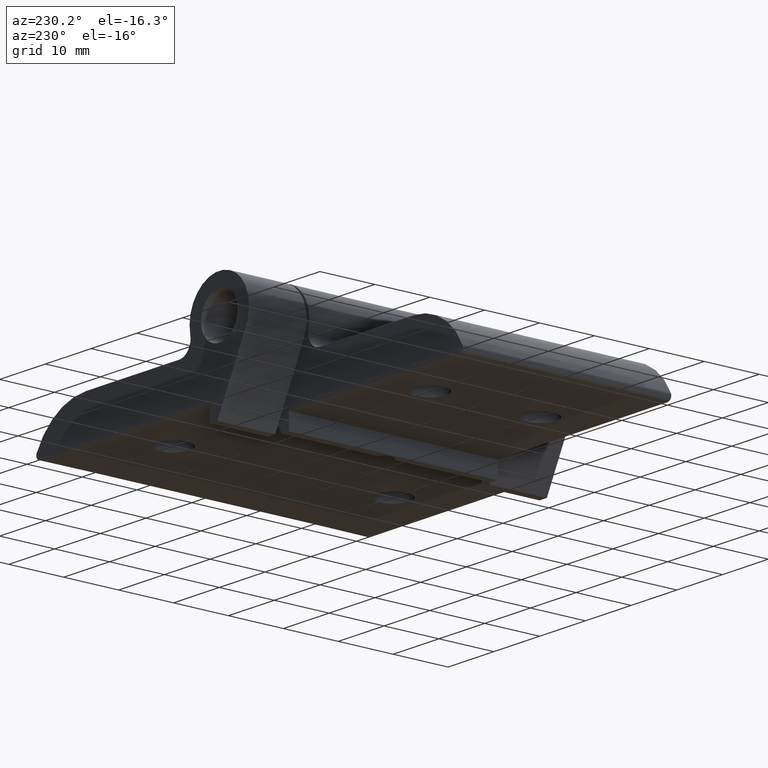
[diagram: clean part render]
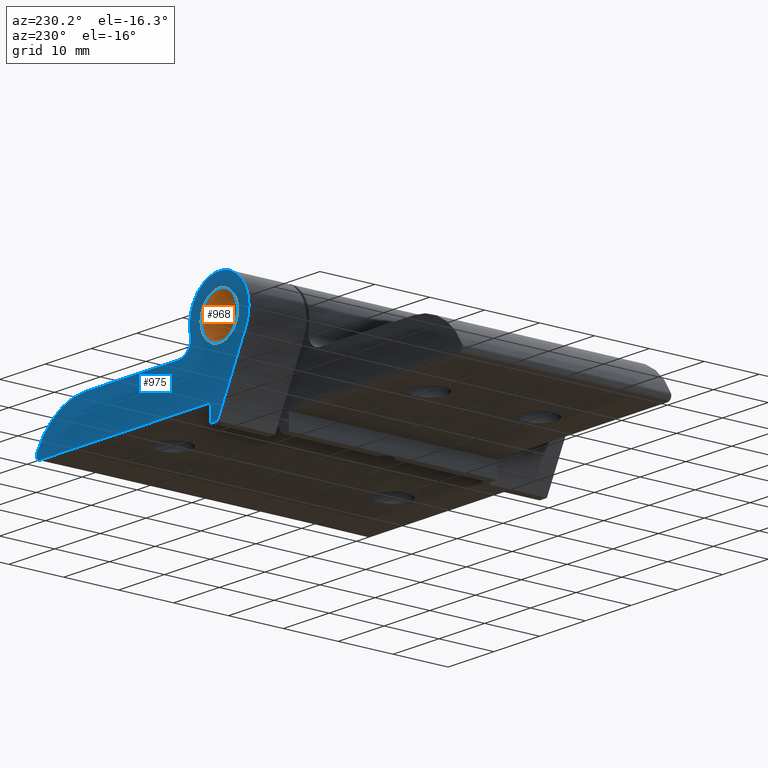
[diagram: same view with the hole feature highlighted: cylindrical wall and planar end face, labeled with their STEP entity ids]
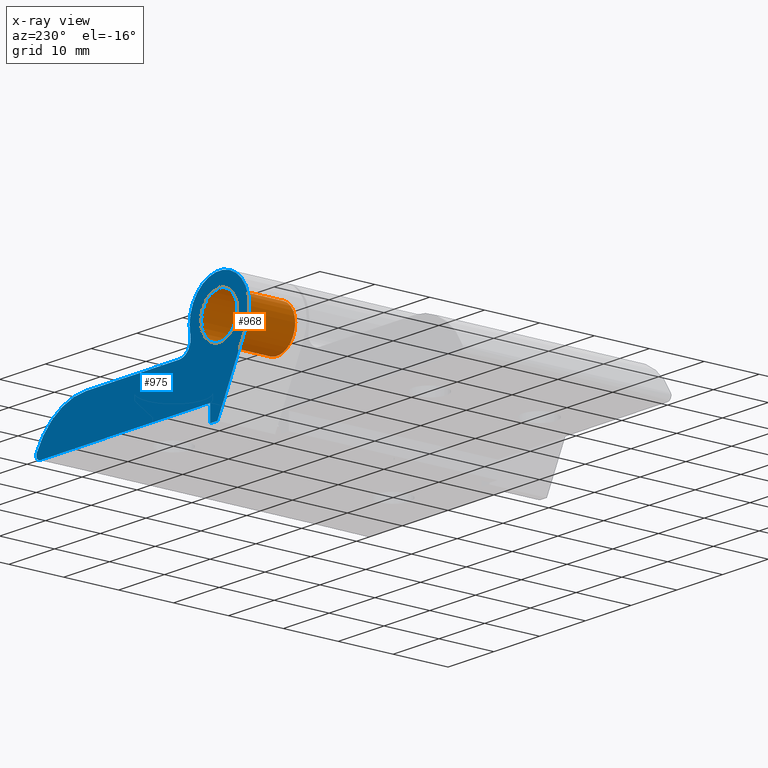
[diagram: x-ray of the same camera — body ghosted, the hole faces saturated]
A machine part, auxiliary view. The highlighted faces form one hole feature of diameter 8 mm: the cylindrical wall (entity #968, orange) and its adjacent planar end face (entity #975, blue) — they share a circular edge in the B-rep.
The next image is the same camera in x-ray (body ghosted, the hole faces saturated) — the bore reads through the body.
Wall:
#94=CYLINDRICAL_SURFACE('',#1103,4.);
#125=FACE_OUTER_BOUND('',#173,.T.);
#173=EDGE_LOOP('',(#752,#753,#754,#755,#756,#757));
#251=LINE('',#1574,#320);
#320=VECTOR('',#1296,4.);
#374=CIRCLE('',#1088,4.);
#375=CIRCLE('',#1089,4.);
#380=CIRCLE('',#1104,4.);
#381=CIRCLE('',#1105,4.);
#439=VERTEX_POINT('',#1523);
#440=VERTEX_POINT('',#1524);
#453=VERTEX_POINT('',#1570);
#454=VERTEX_POINT('',#1571);
#549=EDGE_CURVE('',#439,#440,#374,.T.);
#550=EDGE_CURVE('',#440,#439,#375,.T.);
#572=EDGE_CURVE('',#453,#454,#380,.T.);
#573=EDGE_CURVE('',#454,#453,#381,.T.);
#574=EDGE_CURVE('',#454,#440,#251,.T.);
#752=ORIENTED_EDGE('',*,*,#572,.F.);
#753=ORIENTED_EDGE('',*,*,#573,.F.);
#754=ORIENTED_EDGE('',*,*,#574,.T.);
#755=ORIENTED_EDGE('',*,*,#550,.T.);
#756=ORIENTED_EDGE('',*,*,#549,.T.);
#757=ORIENTED_EDGE('',*,*,#574,.F.);
#968=ADVANCED_FACE('',(#125),#94,.F.);
#1088=AXIS2_PLACEMENT_3D('',#1525,#1243,#1244);
#1089=AXIS2_PLACEMENT_3D('',#1526,#1245,#1246);
#1103=AXIS2_PLACEMENT_3D('',#1569,#1290,#1291);
#1104=AXIS2_PLACEMENT_3D('',#1572,#1292,#1293);
#1105=AXIS2_PLACEMENT_3D('',#1573,#1294,#1295);
#1243=DIRECTION('center_axis',(9.14356323852182E-17,-1.,3.21321186532551E-17));
#1244=DIRECTION('ref_axis',(-1.,0.,0.));
#1245=DIRECTION('center_axis',(9.14356323852182E-17,-1.,3.21321186532551E-17));
#1246=DIRECTION('ref_axis',(-1.,0.,0.));
#1290=DIRECTION('center_axis',(0.,1.,0.));
#1291=DIRECTION('ref_axis',(-1.,0.,0.));
#1292=DIRECTION('center_axis',(0.,-1.,0.));
#1293=DIRECTION('ref_axis',(-1.,0.,0.));
#1294=DIRECTION('center_axis',(0.,-1.,0.));
#1295=DIRECTION('ref_axis',(-1.,0.,0.));
#1296=DIRECTION('',(0.,-1.,0.));
#1523=CARTESIAN_POINT('',(-4.,19.5,-8.97920061122504E-16));
#1524=CARTESIAN_POINT('',(4.,19.5,-1.87763750044039E-15));
#1525=CARTESIAN_POINT('Origin',(0.,19.5,-1.38777878078145E-15));
#1526=CARTESIAN_POINT('Origin',(0.,19.5,-1.38777878078145E-15));
#1569=CARTESIAN_POINT('Origin',(0.,-48.983464308801,-1.38777878078145E-15));
#1570=CARTESIAN_POINT('',(-4.,30.,-1.38777878078145E-15));
#1571=CARTESIAN_POINT('',(4.,30.,-1.87763750044039E-15));
#1572=CARTESIAN_POINT('Origin',(0.,30.,-1.38777878078145E-15));
#1573=CARTESIAN_POINT('Origin',(0.,30.,-1.38777878078145E-15));
#1574=CARTESIAN_POINT('',(4.,-48.983464308801,-1.87763750044039E-15));
End face:
#31=B_SPLINE_CURVE_WITH_KNOTS('',3,(#1617,#1618,#1619,#1620,#1621,#1622),
 .UNSPECIFIED.,.F.,.F.,(4,1,1,4),(-1.,-0.571428571428571,-0.285714285714286,
-0.228202346334164),.UNSPECIFIED.);
#32=B_SPLINE_CURVE_WITH_KNOTS('',3,(#1624,#1625,#1626,#1627),
 .UNSPECIFIED.,.F.,.F.,(4,4),(-0.228202346334164,0.),.UNSPECIFIED.);
#57=FACE_BOUND('',#186,.T.);
#79=PLANE('',#1114);
#132=FACE_OUTER_BOUND('',#185,.T.);
#185=EDGE_LOOP('',(#802,#803,#804,#805,#806,#807,#808,#809,#810,#811));
#186=EDGE_LOOP('',(#812,#813));
#238=LINE('',#1537,#307);
#243=LINE('',#1546,#312);
#247=LINE('',#1554,#316);
#253=LINE('',#1638,#322);
#257=LINE('',#1649,#326);
#307=VECTOR('',#1255,10.);
#312=VECTOR('',#1264,10.);
#316=VECTOR('',#1272,10.);
#322=VECTOR('',#1304,10.);
#326=VECTOR('',#1318,10.);
#377=CIRCLE('',#1099,6.5);
#379=CIRCLE('',#1102,2.5);
#380=CIRCLE('',#1104,4.);
#381=CIRCLE('',#1105,4.);
#384=CIRCLE('',#1112,12.);
#443=VERTEX_POINT('',#1534);
#444=VERTEX_POINT('',#1536);
#446=VERTEX_POINT('',#1544);
#448=VERTEX_POINT('',#1552);
#450=VERTEX_POINT('',#1560);
#452=VERTEX_POINT('',#1566);
#453=VERTEX_POINT('',#1570);
#454=VERTEX_POINT('',#1571);
#458=VERTEX_POINT('',#1611);
#459=VERTEX_POINT('',#1616);
#460=VERTEX_POINT('',#1623);
#463=VERTEX_POINT('',#1645);
#555=EDGE_CURVE('',#444,#443,#238,.T.);
#560=EDGE_CURVE('',#443,#446,#243,.T.);
#564=EDGE_CURVE('',#446,#448,#247,.T.);
#568=EDGE_CURVE('',#448,#450,#377,.T.);
#571=EDGE_CURVE('',#450,#452,#379,.T.);
#572=EDGE_CURVE('',#453,#454,#380,.T.);
#573=EDGE_CURVE('',#454,#453,#381,.T.);
#579=EDGE_CURVE('',#458,#459,#31,.T.);
#580=EDGE_CURVE('',#459,#460,#32,.T.);
#583=EDGE_CURVE('',#458,#444,#253,.T.);
#587=EDGE_CURVE('',#463,#460,#384,.T.);
#589=EDGE_CURVE('',#452,#463,#257,.T.);
#802=ORIENTED_EDGE('',*,*,#579,.F.);
#803=ORIENTED_EDGE('',*,*,#583,.T.);
#804=ORIENTED_EDGE('',*,*,#555,.T.);
#805=ORIENTED_EDGE('',*,*,#560,.T.);
#806=ORIENTED_EDGE('',*,*,#564,.T.);
#807=ORIENTED_EDGE('',*,*,#568,.T.);
#808=ORIENTED_EDGE('',*,*,#571,.T.);
#809=ORIENTED_EDGE('',*,*,#589,.T.);
#810=ORIENTED_EDGE('',*,*,#587,.T.);
#811=ORIENTED_EDGE('',*,*,#580,.F.);
#812=ORIENTED_EDGE('',*,*,#572,.T.);
#813=ORIENTED_EDGE('',*,*,#573,.T.);
#975=ADVANCED_FACE('',(#132,#57),#79,.T.);
#1099=AXIS2_PLACEMENT_3D('',#1562,#1281,#1282);
#1102=AXIS2_PLACEMENT_3D('',#1568,#1288,#1289);
#1104=AXIS2_PLACEMENT_3D('',#1572,#1292,#1293);
#1105=AXIS2_PLACEMENT_3D('',#1573,#1294,#1295);
#1112=AXIS2_PLACEMENT_3D('',#1646,#1313,#1314);
#1114=AXIS2_PLACEMENT_3D('',#1650,#1319,#1320);
#1255=DIRECTION('',(-1.85037170770859E-16,0.,-1.));
#1264=DIRECTION('',(-1.,0.,0.));
#1272=DIRECTION('',(-0.448207310925167,0.,0.893929642887644));
#1281=DIRECTION('center_axis',(0.,1.,0.));
#1282=DIRECTION('ref_axis',(-0.893929642887644,0.,-0.448207310925167));
#1288=DIRECTION('center_axis',(0.,-1.,0.));
#1289=DIRECTION('ref_axis',(0.,0.,1.));
#1292=DIRECTION('center_axis',(0.,-1.,0.));
#1293=DIRECTION('ref_axis',(-1.,0.,0.));
#1294=DIRECTION('center_axis',(0.,-1.,0.));
#1295=DIRECTION('ref_axis',(-1.,0.,0.));
#1304=DIRECTION('',(-1.,0.,0.));
#1313=DIRECTION('center_axis',(0.,1.,0.));
#1314=DIRECTION('ref_axis',(0.,0.,1.));
#1318=DIRECTION('',(1.,0.,-1.087908341283E-16));
#1319=DIRECTION('center_axis',(0.,1.,0.));
#1320=DIRECTION('ref_axis',(0.,0.,1.));
#1534=CARTESIAN_POINT('',(2.,30.,-15.3));
#1536=CARTESIAN_POINT('',(2.,30.,-12.3));
#1537=CARTESIAN_POINT('',(2.,30.,-12.3));
#1544=CARTESIAN_POINT('',(0.399999999999999,30.,-15.3));
#1546=CARTESIAN_POINT('',(2.,30.,-15.3));
#1552=CARTESIAN_POINT('',(-5.81054267876969,30.,-2.91334752101359));
#1554=CARTESIAN_POINT('',(0.399999999999999,30.,-15.3));
#1560=CARTESIAN_POINT('',(6.3374742797832,30.,-1.44444444444445));
#1562=CARTESIAN_POINT('Origin',(0.,30.,-1.38777878078145E-15));
#1566=CARTESIAN_POINT('',(8.77496438739212,30.,-4.5));
#1568=CARTESIAN_POINT('Origin',(8.77496438739212,30.,-2.));
#1570=CARTESIAN_POINT('',(-4.,30.,-1.38777878078145E-15));
#1571=CARTESIAN_POINT('',(4.,30.,-1.87763750044039E-15));
#1572=CARTESIAN_POINT('Origin',(0.,30.,-1.38777878078145E-15));
#1573=CARTESIAN_POINT('Origin',(0.,30.,-1.38777878078145E-15));
#1611=CARTESIAN_POINT('',(39.1883954511527,30.,-12.3));
#1616=CARTESIAN_POINT('',(40.,30.,-11.4883954511528));
#1617=CARTESIAN_POINT('Ctrl Pts',(39.1883954511527,30.,-12.3));
#1618=CARTESIAN_POINT('Ctrl Pts',(39.4243687454637,30.,-12.3));
#1619=CARTESIAN_POINT('Ctrl Pts',(39.8135844392406,30.,-12.1166805367457));
#1620=CARTESIAN_POINT('Ctrl Pts',(39.9889176891916,30.,-11.7085911498544));
#1621=CARTESIAN_POINT('Ctrl Pts',(39.999756441912,30.,-11.5197933238789));
#1622=CARTESIAN_POINT('Ctrl Pts',(39.9997218378176,30.,-11.488161456285));
#1623=CARTESIAN_POINT('',(39.9140261061395,30.,-11.1248543994776));
#1624=CARTESIAN_POINT('Ctrl Pts',(39.9997218378176,30.,-11.488161456285));
#1625=CARTESIAN_POINT('Ctrl Pts',(39.9995845317968,30.,-11.3626489717178));
#1626=CARTESIAN_POINT('Ctrl Pts',(39.9703080039166,30.,-11.237193487896));
#1627=CARTESIAN_POINT('Ctrl Pts',(39.9140261061395,30.,-11.1248543994776));
#1638=CARTESIAN_POINT('',(40.,30.,-12.3));
#1645=CARTESIAN_POINT('',(29.1851953323234,30.,-4.5));
#1646=CARTESIAN_POINT('Origin',(29.1851953323234,30.,-16.5));
#1649=CARTESIAN_POINT('',(8.77496438739212,30.,-4.5));
#1650=CARTESIAN_POINT('Origin',(14.258255673457,30.,-7.13183282613105));